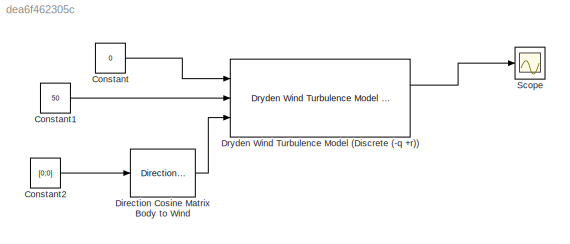
MODEL slx_dea6f462305c
KIND model
CONFIG AbsTol = auto
CONFIG EnableMultiTasking = off
CONFIG FixedStep = auto
CONFIG MaxStep = auto
CONFIG MinStep = auto
CONFIG RelTol = 1e-3
CONFIG SampleTimeConstraint = Unconstrained
CONFIG SolverName = VariableStepAuto
CONFIG StartTime = 0.0
CONFIG StopTime = 10.0
BLOCK [Constant] Constant
  Value = 0
BLOCK [Constant] Constant1
  Value = 50
BLOCK [Constant] Constant2
  Value = [0;0]
BLOCK [Reference] Direction Cosine Matrix Body to Wind  REF=aerolibtransform2/Direction Cosine Matrix
Body to Wind
  Ports = [1, 1]
  SourceBlock = aerolibtransform2/Direction Cosine Matrix\nBody to Wind
  SourceProductBaseCode = AE
  SourceType = DCM Body to Wind
BLOCK [Reference] Dryden Wind Turbulence Model (Discrete (-q +r))  REF=aerolibwind2/Dryden Wind Turbulence Model 
(Continuous (+q -r))
  Ports = [3, 2]
  SourceBlock = aerolibwind2/Dryden Wind Turbulence Model \n(Continuous (+q -r))
  SourceProductBaseCode = AE
  SourceType = Wind Turbulence Model
BLOCK [Scope] Scope
  Floating = off
  NumInputPorts = 1
  Ports = [1]
  ScopeSpecificationString = Simulink.scopes.TimeScopeBlockCfg('CurrentConfiguration', extmgr.ConfigurationSet(extmgr.Configuration('Core','General UI',true),extmgr.Configuration('Core','Source UI',true),extmgr.Configuration('Sources','WiredSimulink',true),extmgr.Configuration('Visuals','Time Domain',true,'SerializedDisplays',{struct('MinYLimReal','-9.63063','MaxYLimReal','10.41619','YLabelReal','','MinYLimMag','0.00000','Max...<+1547ch>
LINE Constant1:1 -> Dryden Wind Turbulence Model (Discrete (-q +r)):2
LINE Constant2:1 -> Direction Cosine Matrix Body to Wind:1
LINE Constant:1 -> Dryden Wind Turbulence Model (Discrete (-q +r)):1
LINE Direction Cosine Matrix Body to Wind:1 -> Dryden Wind Turbulence Model (Discrete (-q +r)):3
LINE Dryden Wind Turbulence Model (Discrete (-q +r)):1 -> Scope:1
